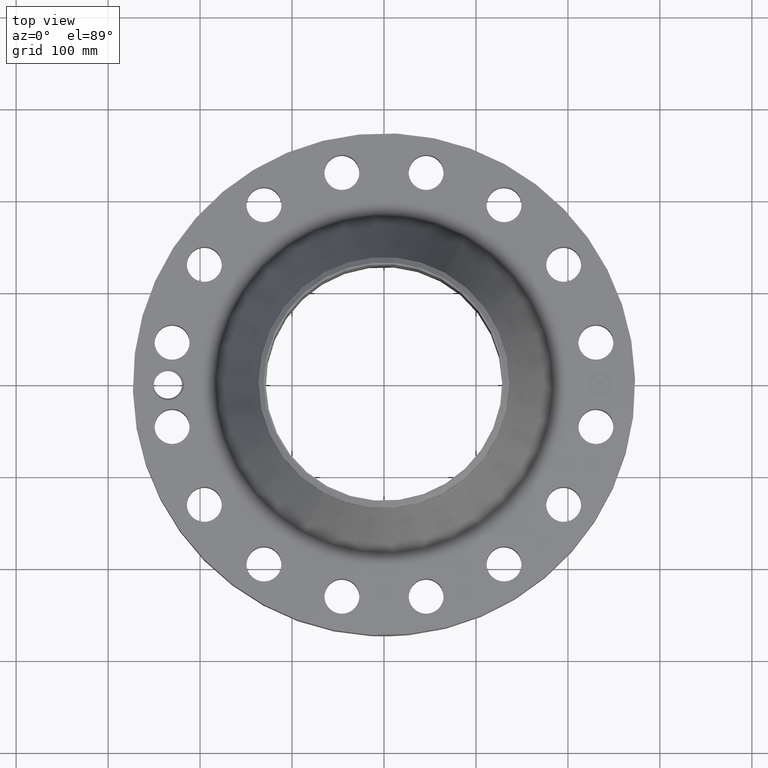
[diagram: clean part render]
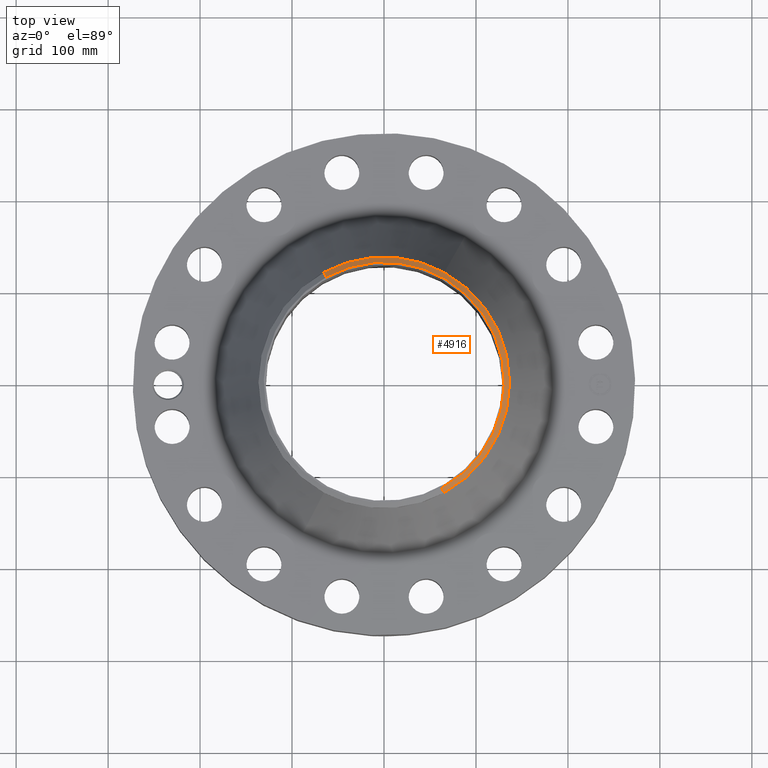
[diagram: same view with one face highlighted and labeled with its STEP entity id]
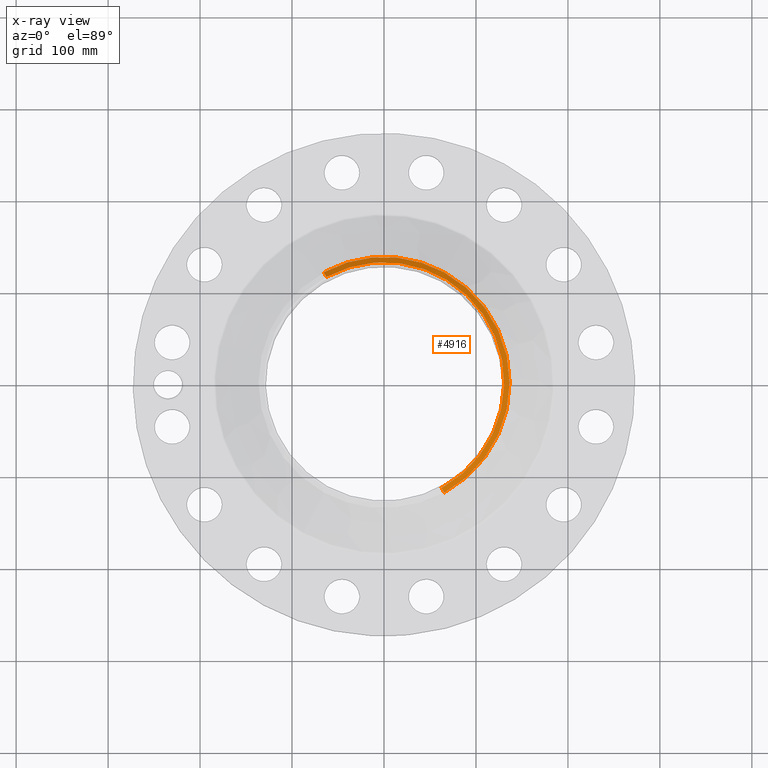
[diagram: x-ray of the same camera — body ghosted, the highlighted face saturated]
A machine part, top view. The second image highlights one B-rep face of the part: STEP entity #4916.
The next image is the same camera in x-ray: the body ghosted, the highlighted face saturated — about 0% of this face is hidden behind the body in this view.
In plain terms, the highlighted conical surface has half-angle 52.5 deg.
Its self-contained STEP definition (entity closure, byte-faithful):
#3725=AXIS2_PLACEMENT_3D('Circle Axis2P3D',#3723,#3724,$) ;
#3752=AXIS2_PLACEMENT_3D('Circle Axis2P3D',#3750,#3751,$) ;
#4538=AXIS2_PLACEMENT_3D('Circle Axis2P3D',#4536,#4537,$) ;
#4897=AXIS2_PLACEMENT_3D('Cone Axis2P3D',#4894,#4895,#4896) ;
#3720=CARTESIAN_POINT('Vertex',(2.57691227001,4.71700627018,7.32485006259)) ;
#3723=CARTESIAN_POINT('Axis2P3D Location',(0.,0.,7.32485006259)) ;
#3727=CARTESIAN_POINT('Vertex',(2.57691227001,-4.71700627018,7.32485006259)) ;
#3747=CARTESIAN_POINT('Vertex',(-2.57691227001,4.71700627018,7.32485006259)) ;
#3750=CARTESIAN_POINT('Axis2P3D Location',(0.,0.,7.32485006259)) ;
#4536=CARTESIAN_POINT('Axis2P3D Location',(0.,0.,7.50000000003)) ;
#4540=CARTESIAN_POINT('Vertex',(2.46747867207,-4.5166894128,7.50000000003)) ;
#4542=CARTESIAN_POINT('Vertex',(-2.46747867207,4.5166894128,7.50000000003)) ;
#4894=CARTESIAN_POINT('Axis2P3D Location',(0.,0.,7.50000000003)) ;
#4899=CARTESIAN_POINT('Line Origine',(-2.52219547104,4.61684784149,7.41242503131)) ;
#4904=CARTESIAN_POINT('Line Origine',(2.52219547104,-4.61684784149,7.41242503131)) ;
#3724=DIRECTION('Axis2P3D Direction',(0.,0.,-0.0393700787402)) ;
#3751=DIRECTION('Axis2P3D Direction',(0.,0.,-0.0393700787402)) ;
#4537=DIRECTION('Axis2P3D Direction',(0.,0.,-0.0393700787402)) ;
#4895=DIRECTION('Axis2P3D Direction',(-0.,-0.,-0.0393700787402)) ;
#4896=DIRECTION('Axis2P3D XDirection',(0.0188750212049,-0.0345504945626,0.)) ;
#4900=DIRECTION('Vector Direction',(-0.014974561121,0.02741075027,-0.023966985394)) ;
#4905=DIRECTION('Vector Direction',(0.014974561121,-0.02741075027,-0.023966985394)) ;
#4901=VECTOR('Line Direction',#4900,0.0393700787402) ;
#4906=VECTOR('Line Direction',#4905,0.0393700787402) ;
#4910=ORIENTED_EDGE('',*,*,#4903,.F.) ;
#4911=ORIENTED_EDGE('',*,*,#4544,.F.) ;
#4912=ORIENTED_EDGE('',*,*,#4908,.T.) ;
#4913=ORIENTED_EDGE('',*,*,#3729,.T.) ;
#4914=ORIENTED_EDGE('',*,*,#3754,.F.) ;
#4916=ADVANCED_FACE('PartBody',(#4915),#4898,.T.) ;
#3726=CIRCLE('generated circle',#3725,5.37500000002) ;
#3753=CIRCLE('generated circle',#3752,5.37500000002) ;
#4539=CIRCLE('generated circle',#4538,5.1467401575) ;
#4898=CONICAL_SURFACE('Cone',#4897,5.1467401575,0.916297857297) ;
#3729=EDGE_CURVE('',#3728,#3721,#3726,.F.) ;
#3754=EDGE_CURVE('',#3748,#3721,#3753,.T.) ;
#4544=EDGE_CURVE('',#4541,#4543,#4539,.F.) ;
#4903=EDGE_CURVE('',#4543,#3748,#4902,.T.) ;
#4908=EDGE_CURVE('',#4541,#3728,#4907,.T.) ;
#4909=EDGE_LOOP('',(#4910,#4911,#4912,#4913,#4914)) ;
#4915=FACE_OUTER_BOUND('',#4909,.T.) ;
#4902=LINE('Line',#4899,#4901) ;
#4907=LINE('Line',#4904,#4906) ;
#3721=VERTEX_POINT('',#3720) ;
#3728=VERTEX_POINT('',#3727) ;
#3748=VERTEX_POINT('',#3747) ;
#4541=VERTEX_POINT('',#4540) ;
#4543=VERTEX_POINT('',#4542) ;